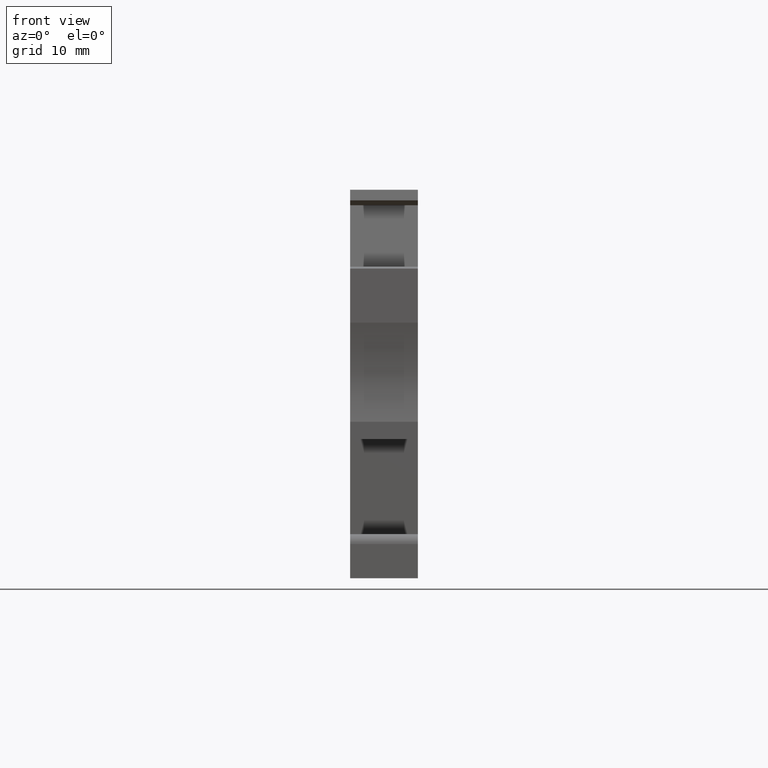
[diagram: clean part render]
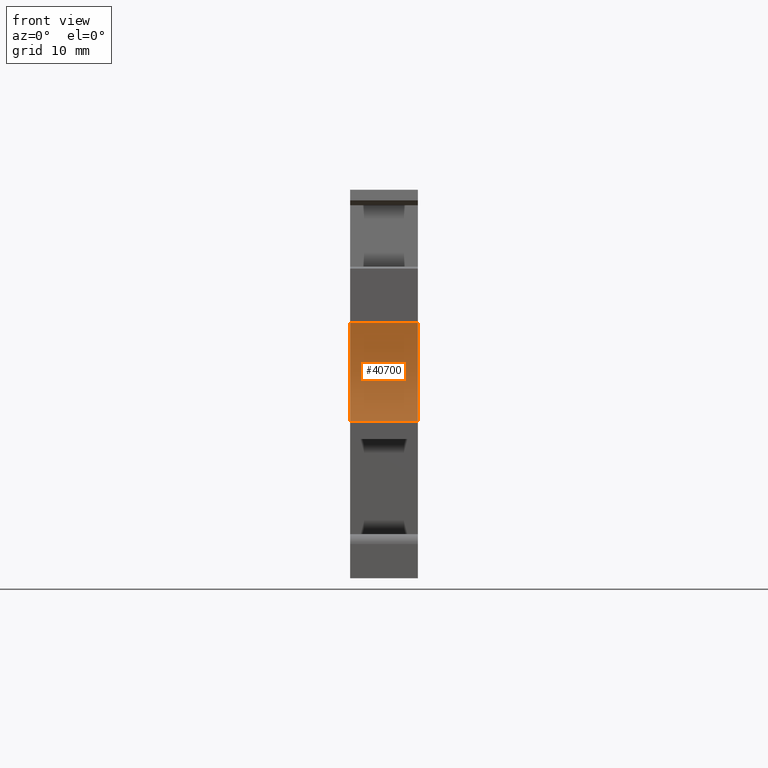
[diagram: same view with one face highlighted and labeled with its STEP entity id]
A machine part, front view. The second image highlights one B-rep face of the part: STEP entity #40700.
In plain terms, the highlighted cylindrical surface (partial cylindrical patch) has radius 15 mm, axis along (1, -0, 0).
Its self-contained STEP definition (entity closure, byte-faithful):
#530=CARTESIAN_POINT('',(-47.3999999999999,-1.05000000000123,
0.999999999999993));
#540=VERTEX_POINT('',#530);
#570=CARTESIAN_POINT('',(-61.7090880212541,3.44999999999869,
0.999999999999993));
#580=DIRECTION('',(0.,0.,1.));
#590=DIRECTION('',(1.,0.,0.));
#600=AXIS2_PLACEMENT_3D('',#570,#580,#590);
#610=CIRCLE('',#600,15.);
#620=CARTESIAN_POINT('',(-47.3999999999999,7.94999999999867,
0.999999999999993));
#630=VERTEX_POINT('',#620);
#640=EDGE_CURVE('',#540,#630,#610,.T.);
#39830=CARTESIAN_POINT('',(-47.3999999999999,7.94999999999867,
0.999999999999993));
#39840=DIRECTION('',(0.,0.,-1.));
#39850=VECTOR('',#39840,1.);
#39860=LINE('',#39830,#39850);
#39870=CARTESIAN_POINT('',(-47.3999999999999,7.94999999999867,
-5.15000000000001));
#39880=VERTEX_POINT('',#39870);
#39890=EDGE_CURVE('',#630,#39880,#39860,.T.);
#40330=CARTESIAN_POINT('',(-47.3999999999999,-1.05000000000123,
-5.15000000000001));
#40340=VERTEX_POINT('',#40330);
#40370=CARTESIAN_POINT('',(-47.3999999999999,-1.05000000000123,
0.999999999999993));
#40380=DIRECTION('',(0.,0.,-1.));
#40390=VECTOR('',#40380,1.);
#40400=LINE('',#40370,#40390);
#40410=EDGE_CURVE('',#540,#40340,#40400,.T.);
#40530=CARTESIAN_POINT('',(-61.7090880212541,3.44999999999869,
0.999999999999993));
#40540=DIRECTION('',(0.,0.,1.));
#40550=DIRECTION('',(1.,0.,0.));
#40560=AXIS2_PLACEMENT_3D('',#40530,#40540,#40550);
#40570=CYLINDRICAL_SURFACE('',#40560,15.);
#40580=ORIENTED_EDGE('',*,*,#640,.T.);
#40590=ORIENTED_EDGE('',*,*,#40410,.F.);
#40600=CARTESIAN_POINT('',(-61.7090880212541,3.44999999999869,
-5.15000000000001));
#40610=DIRECTION('',(0.,0.,1.));
#40620=DIRECTION('',(1.,0.,0.));
#40630=AXIS2_PLACEMENT_3D('',#40600,#40610,#40620);
#40640=CIRCLE('',#40630,15.);
#40650=EDGE_CURVE('',#40340,#39880,#40640,.T.);
#40660=ORIENTED_EDGE('',*,*,#40650,.F.);
#40670=ORIENTED_EDGE('',*,*,#39890,.T.);
#40680=EDGE_LOOP('',(#40670,#40660,#40590,#40580));
#40690=FACE_OUTER_BOUND('',#40680,.T.);
#40700=ADVANCED_FACE('',(#40690),#40570,.F.);